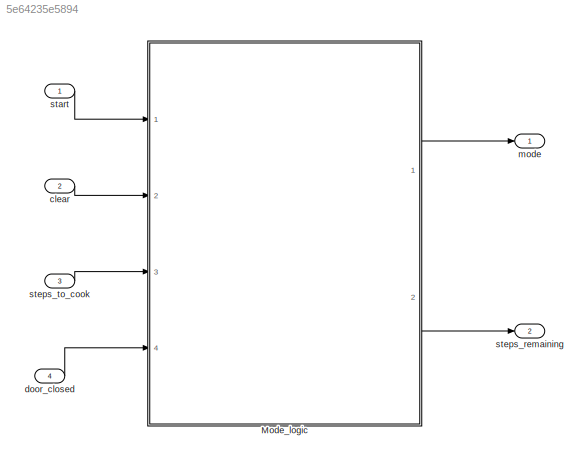
MODEL slx_5e64235e5894
KIND model
CONFIG AbsTol = auto
CONFIG EnableMultiTasking = on
CONFIG FixedStep = 1.000000
CONFIG MaxStep = auto
CONFIG MinStep = auto
CONFIG RelTol = 1e-3
CONFIG SampleTimeConstraint = Unconstrained
CONFIG Solver = FixedStepDiscrete
CONFIG SolverName = FixedStepDiscrete
CONFIG StartTime = 0.0
CONFIG StopTime = 20
WORKSPACE source: MAT-file member
WORKSPACE already_pp = 1
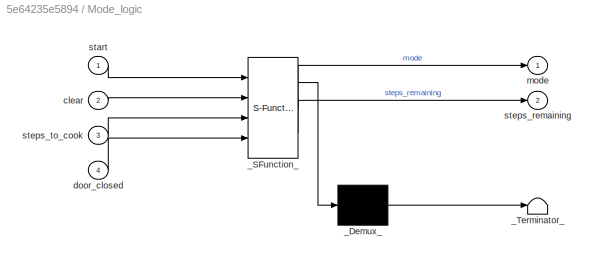
BLOCK [SubSystem] Mode_logic
  ErrorFcn = Stateflow.Translate.translate
  PermitHierarchicalResolution = ExplicitOnly
  Ports = [4, 2]
  RequestExecContextInheritance = off
  SFBlockType = Chart
  TreatAsAtomicUnit = on
  Variant = off
BLOCK [Demux] Mode_logic/_Demux_
  Outputs = 1
  Ports = [1, 1]
BLOCK [S-Function] Mode_logic/_SFunction_
  EnableBusSupport = on
  FunctionName = sf_sfun
  PortCounts = [4 3]
  Ports = [4, 3]
  SFcnIsStateOwnerBlock = off
  SFunctionDeploymentMode = off
  Tag = Stateflow S-Function Microwave_PP 1
BLOCK [Terminator] Mode_logic/_Terminator_
BLOCK [Inport] Mode_logic/clear
  IconDisplay = Port number
  Port = 2
BLOCK [Inport] Mode_logic/door_closed
  IconDisplay = Port number
  Port = 4
BLOCK [Outport] Mode_logic/mode
  IconDisplay = Port number
BLOCK [Inport] Mode_logic/start
  IconDisplay = Port number
BLOCK [Outport] Mode_logic/steps_remaining
  IconDisplay = Port number
  Port = 2
BLOCK [Inport] Mode_logic/steps_to_cook
  IconDisplay = Port number
  Port = 3
BLOCK [Inport] clear
  IconDisplay = Port number
  Port = 2
BLOCK [Inport] door_closed
  IconDisplay = Port number
  Port = 4
BLOCK [Outport] mode
  IconDisplay = Port number
BLOCK [Inport] start
  IconDisplay = Port number
BLOCK [Outport] steps_remaining
  IconDisplay = Port number
  Port = 2
BLOCK [Inport] steps_to_cook
  IconDisplay = Port number
  Port = 3
LINE Mode_logic:1 -> mode:1
LINE Mode_logic:2 -> steps_remaining:1
LINE clear:1 -> Mode_logic:2
LINE door_closed:1 -> Mode_logic:4
LINE start:1 -> Mode_logic:1
LINE steps_to_cook:1 -> Mode_logic:3
CHART Mode_logic states=4 transitions=12
  STATE_LABEL 'RUNNING\n'
  STATE_LABEL 'COOKING\nentry: mode=2;'
  STATE_LABEL 'SUSPENDED\nentry: mode=3;'
  STATE_LABEL '[steps_remaining > 0]\n/{steps_remaining = steps_remaining - 1;}'
  STATE_LABEL '[door_closed]'
  STATE_LABEL '[start && ...\ndoor_closed]'
  STATE_LABEL '[clear || ...\n~door_closed]'
  STATE_LABEL 'COOKING\nentry: mode=2;'
  STATE_LABEL 'SUSPENDED\nentry: mode=3;'
  STATE_LABEL 'SETUP\nentry:\nmode=1;\nsteps_remaining = steps_to_cook;'
